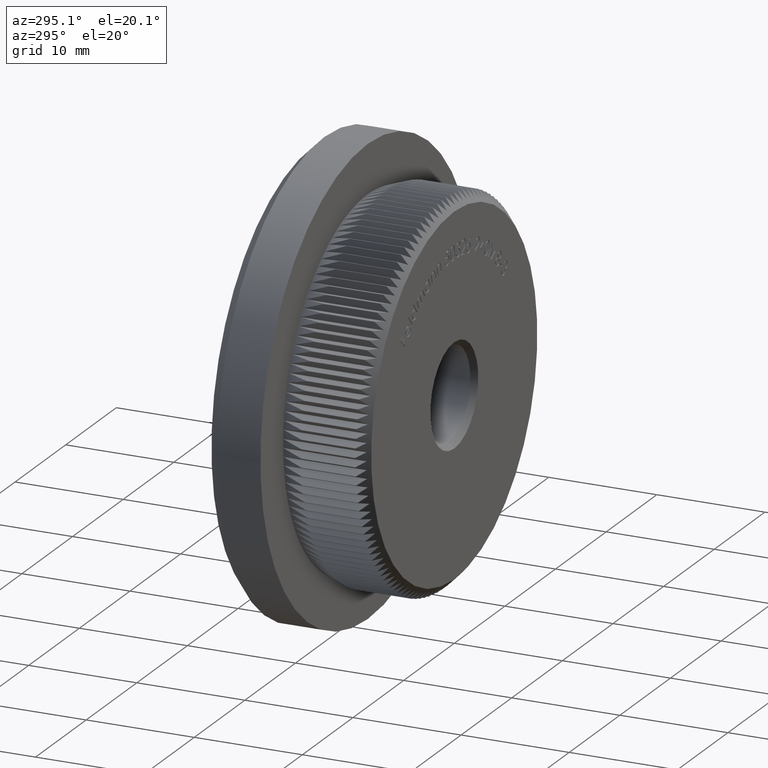
[diagram: clean part render]
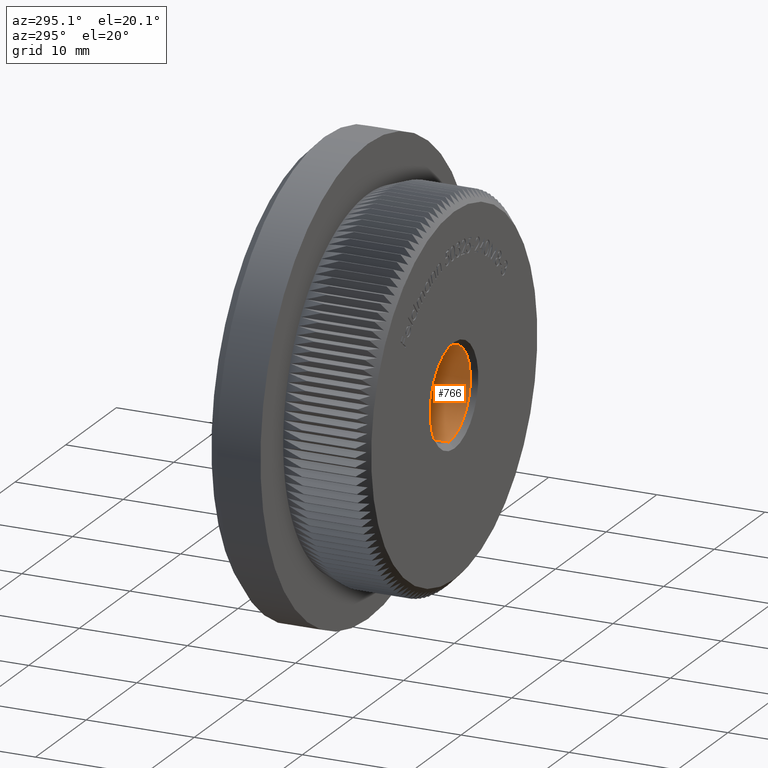
[diagram: same view with one face highlighted and labeled with its STEP entity id]
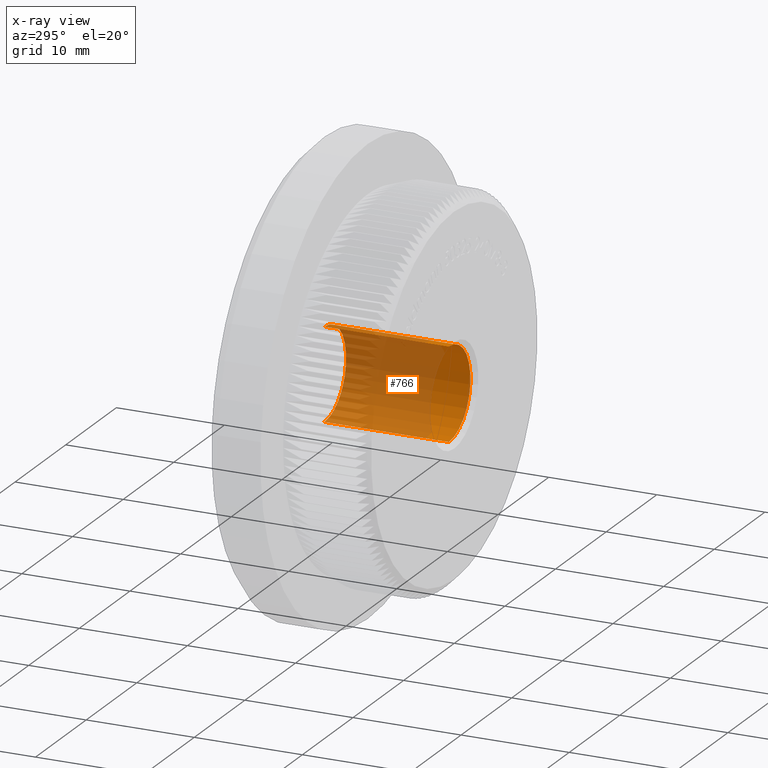
[diagram: x-ray of the same camera — body ghosted, the highlighted face saturated]
A machine part, auxiliary view. The second image highlights one B-rep face of the part: STEP entity #766.
The next image is the same camera in x-ray: the body ghosted, the highlighted face saturated — about 75% of this face is hidden behind the body in this view.
In plain terms, the highlighted cylindrical surface (partial cylindrical patch) has radius 4.25 mm, axis along (-0, -1, -0).
Its self-contained STEP definition (entity closure, byte-faithful):
#766 = ADVANCED_FACE ( 'NONE', ( #27687 ), #27656, .F. ) ;
#838 = VERTEX_POINT ( 'NONE', #9972 ) ;
#1053 = ORIENTED_EDGE ( 'NONE', *, *, #21448, .T. ) ;
#3612 = AXIS2_PLACEMENT_3D ( 'NONE', #4828, #24978, #25095 ) ;
#4672 = CIRCLE ( 'NONE', #14568, 4.249999999999997300 ) ;
#4828 = CARTESIAN_POINT ( 'NONE',  ( 0.0000000000000000000, 11.99999999999998000, 0.0000000000000000000 ) ) ;
#5018 = EDGE_LOOP ( 'NONE', ( #32213, #13890, #9132, #1053 ) ) ;
#6906 = DIRECTION ( 'NONE',  ( 0.0000000000000000000, 0.0000000000000000000, -1.000000000000000000 ) ) ;
#7149 = AXIS2_PLACEMENT_3D ( 'NONE', #22331, #27167, #6906 ) ;
#7307 = LINE ( 'NONE', #31132, #10820 ) ;
#9132 = ORIENTED_EDGE ( 'NONE', *, *, #9986, .T. ) ;
#9329 = DIRECTION ( 'NONE',  ( 0.0000000000000000000, 0.0000000000000000000, -1.000000000000000000 ) ) ;
#9972 = CARTESIAN_POINT ( 'NONE',  ( 5.204748896376248700E-016, 0.5000000000000078800, 4.249999999999997300 ) ) ;
#9986 = EDGE_CURVE ( 'NONE', #21517, #28461, #23852, .T. ) ;
#10377 = EDGE_CURVE ( 'NONE', #19988, #838, #7307, .T. ) ;
#10820 = VECTOR ( 'NONE', #13668, 1000.000000000000000 ) ;
#11409 = CIRCLE ( 'NONE', #3612, 4.249999999999997300 ) ;
#11755 = DIRECTION ( 'NONE',  ( 0.0000000000000000000, -1.000000000000000000, 0.0000000000000000000 ) ) ;
#12403 = CARTESIAN_POINT ( 'NONE',  ( 0.0000000000000000000, 11.99999999999998000, -4.249999999999997300 ) ) ;
#13668 = DIRECTION ( 'NONE',  ( -0.0000000000000000000, -1.000000000000000000, -0.0000000000000000000 ) ) ;
#13816 = CARTESIAN_POINT ( 'NONE',  ( 0.0000000000000000000, 0.0000000000000000000, -4.249999999999997300 ) ) ;
#13890 = ORIENTED_EDGE ( 'NONE', *, *, #20591, .T. ) ;
#14135 = CARTESIAN_POINT ( 'NONE',  ( 0.0000000000000000000, 0.5000000000000078800, -4.249999999999997300 ) ) ;
#14568 = AXIS2_PLACEMENT_3D ( 'NONE', #26861, #11755, #9329 ) ;
#15126 = VECTOR ( 'NONE', #18796, 1000.000000000000000 ) ;
#18796 = DIRECTION ( 'NONE',  ( -0.0000000000000000000, -1.000000000000000000, -0.0000000000000000000 ) ) ;
#19988 = VERTEX_POINT ( 'NONE', #32101 ) ;
#20591 = EDGE_CURVE ( 'NONE', #19988, #21517, #11409, .T. ) ;
#21448 = EDGE_CURVE ( 'NONE', #28461, #838, #4672, .T. ) ;
#21517 = VERTEX_POINT ( 'NONE', #12403 ) ;
#22331 = CARTESIAN_POINT ( 'NONE',  ( 0.0000000000000000000, 0.0000000000000000000, 0.0000000000000000000 ) ) ;
#23852 = LINE ( 'NONE', #13816, #15126 ) ;
#24978 = DIRECTION ( 'NONE',  ( -0.0000000000000000000, 1.000000000000000000, -0.0000000000000000000 ) ) ;
#25095 = DIRECTION ( 'NONE',  ( 0.0000000000000000000, 0.0000000000000000000, 1.000000000000000000 ) ) ;
#26861 = CARTESIAN_POINT ( 'NONE',  ( 0.0000000000000000000, 0.5000000000000078800, 0.0000000000000000000 ) ) ;
#27167 = DIRECTION ( 'NONE',  ( -0.0000000000000000000, -1.000000000000000000, -0.0000000000000000000 ) ) ;
#27656 = CYLINDRICAL_SURFACE ( 'NONE', #7149, 4.249999999999997300 ) ;
#27687 = FACE_OUTER_BOUND ( 'NONE', #5018, .T. ) ;
#28461 = VERTEX_POINT ( 'NONE', #14135 ) ;
#31132 = CARTESIAN_POINT ( 'NONE',  ( 5.204748896376248700E-016, 0.0000000000000000000, 4.249999999999997300 ) ) ;
#32101 = CARTESIAN_POINT ( 'NONE',  ( 5.204748896376248700E-016, 11.99999999999998000, 4.249999999999997300 ) ) ;
#32213 = ORIENTED_EDGE ( 'NONE', *, *, #10377, .F. ) ;